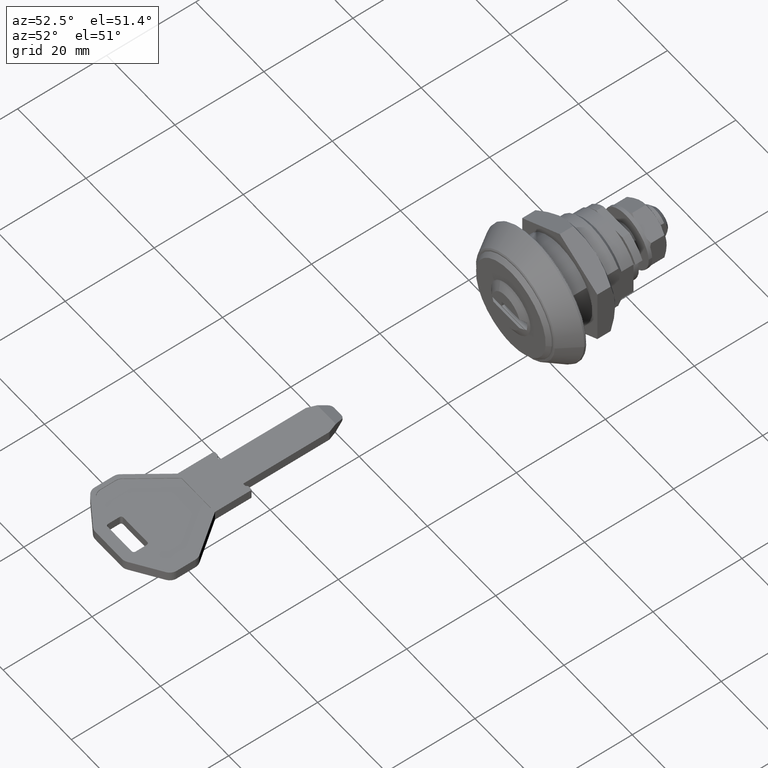
[diagram: clean part render]
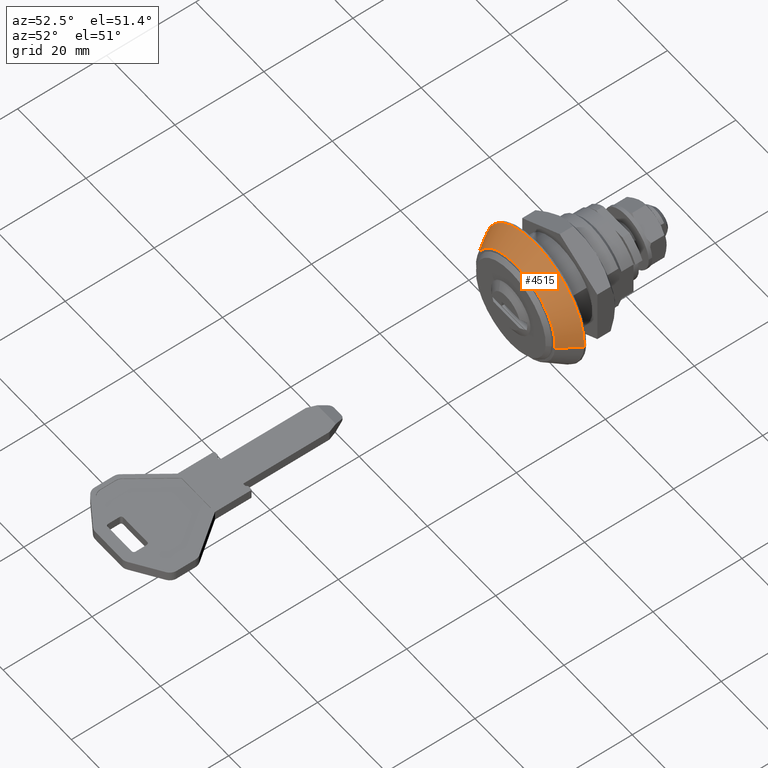
[diagram: same view with one face highlighted and labeled with its STEP entity id]
A machine part, auxiliary view. The second image highlights one B-rep face of the part: STEP entity #4515.
In plain terms, the highlighted face is a freeform B-spline surface patch.
Its self-contained STEP definition (entity closure, byte-faithful):
#4343=CARTESIAN_POINT('',(14.472954574721900,-0.499999999865429,-0.885203863069927));
#4344=VERTEX_POINT('',#4343);
#4365=CARTESIAN_POINT('',(-14.472954574721900,-0.499999999865427,0.885203863069926));
#4366=VERTEX_POINT('',#4365);
#4410=CARTESIAN_POINT('',(-3.061516E-017,-0.499999999984780,14.500000000000140));
#4411=VERTEX_POINT('',#4410);
#4412=CARTESIAN_POINT('',(-3.061516E-017,-0.499999999984780,14.500000000000140));
#4413=CARTESIAN_POINT('',(-13.412488746198356,-0.499999999925103,14.373773487147782));
#4414=CARTESIAN_POINT('',(-14.472954574721903,-0.499999999865427,0.885203863069926));
#4422=(BOUNDED_CURVE()B_SPLINE_CURVE(2,(#4412,#4413,#4414),.UNSPECIFIED.,.F.,.U.)B_SPLINE_CURVE_WITH_KNOTS((3,3),(0.0,0.236331300624226),.UNSPECIFIED.)CURVE()GEOMETRIC_REPRESENTATION_ITEM()RATIONAL_B_SPLINE_CURVE((1.0,0.723120658615202,0.969723356153992))REPRESENTATION_ITEM(''));
#4423=EDGE_CURVE('',#4411,#4366,#4422,.T.);
#4425=CARTESIAN_POINT('',(14.472954574721898,-0.499999999865429,-0.885203863069927));
#4426=CARTESIAN_POINT('',(14.500000000039183,-0.499999999867160,-0.443015087794458));
#4427=CARTESIAN_POINT('',(14.500000000038570,-0.499999999868999,-3.707889E-012));
#4428=CARTESIAN_POINT('',(14.500000000018430,-0.499999999929164,14.499999999998375));
#4429=CARTESIAN_POINT('',(-3.061516E-017,-0.499999999984780,14.500000000000140));
#4437=(BOUNDED_CURVE()B_SPLINE_CURVE(2,(#4425,#4426,#4427,#4428,#4429),.UNSPECIFIED.,.F.,.U.)B_SPLINE_CURVE_WITH_KNOTS((3,2,3),(0.739332961767345,0.750000000000000,1.0),.UNSPECIFIED.)CURVE()GEOMETRIC_REPRESENTATION_ITEM()RATIONAL_B_SPLINE_CURVE((0.976072040655994,0.987502787347326,1.0,0.707106781186547,1.0))REPRESENTATION_ITEM(''));
#4438=EDGE_CURVE('',#4344,#4411,#4437,.T.);
#4445=CARTESIAN_POINT('',(-11.531454816235735,-4.941929689658704,0.545588122807059));
#4446=CARTESIAN_POINT('',(-11.517391456086944,-4.941929689658700,0.724280056135962));
#4447=CARTESIAN_POINT('',(-10.597826506999123,-4.941929689658703,12.408460567455906));
#4448=CARTESIAN_POINT('',(0.905317030228391,-4.941929689658703,11.503143537227510));
#4449=CARTESIAN_POINT('',(12.408460567455906,-4.941929689658704,10.597826506999123));
#4450=CARTESIAN_POINT('',(11.496721403432813,-4.941929689658705,-0.986917977067050));
#4451=CARTESIAN_POINT('',(11.490336899972885,-4.941929689658706,-1.068040785167665));
#4452=CARTESIAN_POINT('',(-14.564863992404982,-0.388951757742931,0.689107916667045));
#4453=CARTESIAN_POINT('',(-14.547101192211306,-0.388951757742931,0.914805692615575));
#4454=CARTESIAN_POINT('',(-13.385639899678662,-0.388951757742931,15.672570668677480));
#4455=CARTESIAN_POINT('',(1.143465384499406,-0.388951757742932,14.529105284178071));
#4456=CARTESIAN_POINT('',(15.672570668677480,-0.388951757742933,13.385639899678662));
#4457=CARTESIAN_POINT('',(14.520993774680656,-0.388951757742933,-1.246531884893023));
#4458=CARTESIAN_POINT('',(14.512929794373340,-0.388951757742933,-1.348994469666270));
#4466=(BOUNDED_SURFACE()B_SPLINE_SURFACE(2,1,((#4445,#4452),(#4446,#4453),(#4447,#4454),(#4448,#4455),(#4449,#4456),(#4450,#4457),(#4451,#4458)),.UNSPECIFIED.,.F.,.F.,.U.)B_SPLINE_SURFACE_WITH_KNOTS((3,1,2,1,3),(2,2),(0.0,0.540966243527964,24.688013362538939,48.835060481549910,49.078020981460490),(0.0,5.472821686279342),.UNSPECIFIED.)GEOMETRIC_REPRESENTATION_ITEM()RATIONAL_B_SPLINE_SURFACE(((1.013123372274499,1.013123372274499),(1.006561686137250,1.006561686137250),(0.707106781186548,0.707106781186548),(1.0,1.0),(0.707106781186548,0.707106781186548),(1.002947005590895,1.002947005590895),(1.005894011181790,1.005894011181790)))REPRESENTATION_ITEM('')SURFACE());
#4467=CARTESIAN_POINT('',(-11.575147386054629,-4.833589941129781,0.910983856030640));
#4468=VERTEX_POINT('',#4467);
#4469=CARTESIAN_POINT('',(-11.575147386054629,-4.833589941129781,0.910983856030640));
#4470=CARTESIAN_POINT('',(-14.472954574721900,-0.499999999865427,0.885203863069926));
#4471=QUASI_UNIFORM_CURVE('',1,(#4469,#4470),.UNSPECIFIED.,.F.,.U.);
#4472=EDGE_CURVE('',#4468,#4366,#4471,.T.);
#4473=ORIENTED_EDGE('',*,*,#4472,.F.);
#4474=CARTESIAN_POINT('',(-2.959622E-016,-4.833589941130070,11.610940039240059));
#4475=VERTEX_POINT('',#4474);
#4476=CARTESIAN_POINT('',(-2.959622E-016,-4.833589941130070,11.610940039240059));
#4477=CARTESIAN_POINT('',(-10.733042571484324,-4.833589941129925,11.610940039239271));
#4478=CARTESIAN_POINT('',(-11.575147386054637,-4.833589941129781,0.910983856030640));
#4486=(BOUNDED_CURVE()B_SPLINE_CURVE(2,(#4476,#4477,#4478),.UNSPECIFIED.,.F.,.U.)B_SPLINE_CURVE_WITH_KNOTS((3,3),(0.0,0.236331300632719),.UNSPECIFIED.)CURVE()GEOMETRIC_REPRESENTATION_ITEM()RATIONAL_B_SPLINE_CURVE((1.0,0.723120658605253,0.969723356171716))REPRESENTATION_ITEM(''));
#4487=EDGE_CURVE('',#4475,#4468,#4486,.T.);
#4488=ORIENTED_EDGE('',*,*,#4487,.F.);
#4489=CARTESIAN_POINT('',(11.575147386054629,-4.833589941129783,-0.910983856030640));
#4490=VERTEX_POINT('',#4489);
#4491=CARTESIAN_POINT('',(11.575147386054637,-4.833589941129783,-0.910983856030640));
#4492=CARTESIAN_POINT('',(11.610940039240063,-4.833589941130030,-0.456195076601407));
#4493=CARTESIAN_POINT('',(11.610940039240059,-4.833589941130030,1.551528E-012));
#4494=CARTESIAN_POINT('',(11.610940039240063,-4.833589941130050,11.610940039240806));
#4495=CARTESIAN_POINT('',(-2.959622E-016,-4.833589941130070,11.610940039240059));
#4503=(BOUNDED_CURVE()B_SPLINE_CURVE(2,(#4491,#4492,#4493,#4494,#4495),.UNSPECIFIED.,.F.,.U.)B_SPLINE_CURVE_WITH_KNOTS((3,2,3),(0.736331300632719,0.750000000000000,1.0),.UNSPECIFIED.)CURVE()GEOMETRIC_REPRESENTATION_ITEM()RATIONAL_B_SPLINE_CURVE((0.969723356171716,0.983986122581295,1.0,0.707106781186548,1.0))REPRESENTATION_ITEM(''));
#4504=EDGE_CURVE('',#4490,#4475,#4503,.T.);
#4505=ORIENTED_EDGE('',*,*,#4504,.F.);
#4506=CARTESIAN_POINT('',(11.575147386054629,-4.833589941129783,-0.910983856030640));
#4507=CARTESIAN_POINT('',(14.472954574721900,-0.499999999865429,-0.885203863069927));
#4508=QUASI_UNIFORM_CURVE('',1,(#4506,#4507),.UNSPECIFIED.,.F.,.U.);
#4509=EDGE_CURVE('',#4490,#4344,#4508,.T.);
#4510=ORIENTED_EDGE('',*,*,#4509,.T.);
#4511=ORIENTED_EDGE('',*,*,#4438,.T.);
#4512=ORIENTED_EDGE('',*,*,#4423,.T.);
#4513=EDGE_LOOP('',(#4473,#4488,#4505,#4510,#4511,#4512));
#4514=FACE_OUTER_BOUND('',#4513,.T.);
#4515=ADVANCED_FACE('',(#4514),#4466,.T.);